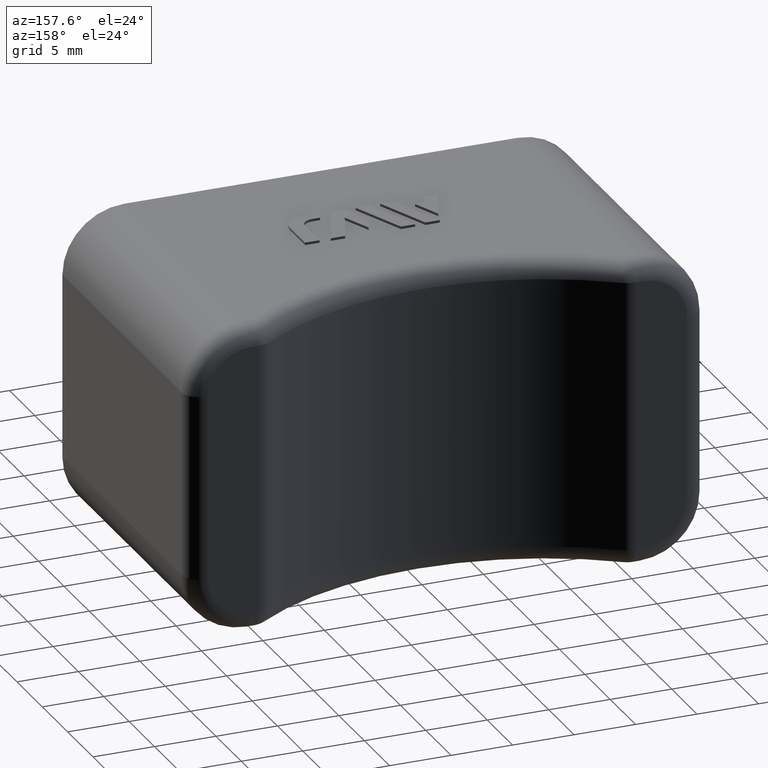
[diagram: clean part render]
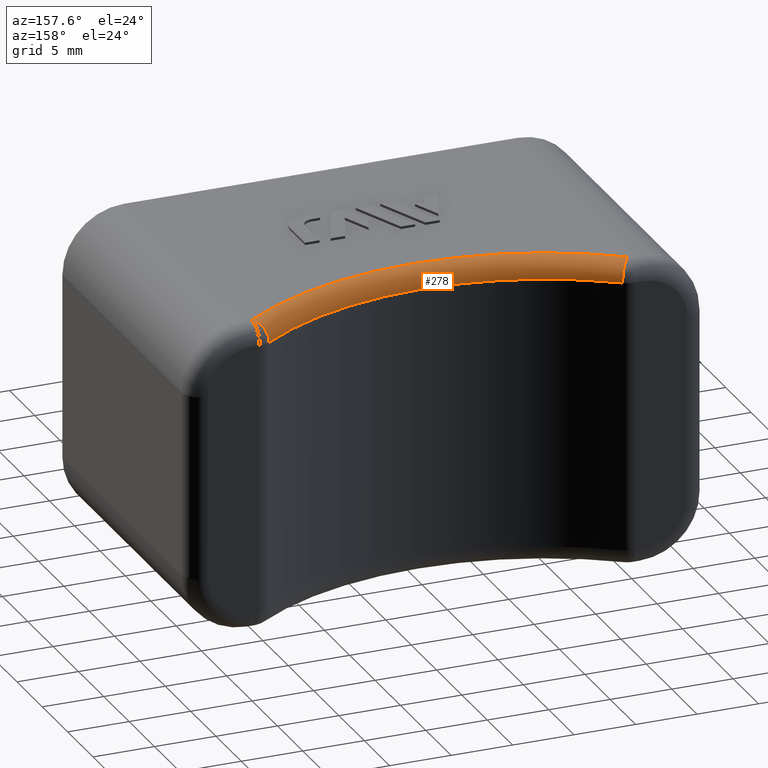
[diagram: same view with one face highlighted and labeled with its STEP entity id]
A machine part, auxiliary view. The second image highlights one B-rep face of the part: STEP entity #278.
In plain terms, the highlighted toroidal blend (fillet) surface has major radius 25.8 mm and minor (blend) radius 1.5 mm.
Its self-contained STEP definition (entity closure, byte-faithful):
#278 = ADVANCED_FACE( '', ( #772 ), #773, .T. );
#772 = FACE_OUTER_BOUND( '', #1318, .T. );
#773 = TOROIDAL_SURFACE( '', #1319, 25.8000000000000, 1.50000000000000 );
#1318 = EDGE_LOOP( '', ( #3068, #3069, #3070, #3071 ) );
#1319 = AXIS2_PLACEMENT_3D( '', #3072, #3073, #3074 );
#3068 = ORIENTED_EDGE( '', *, *, #4065, .T. );
#3069 = ORIENTED_EDGE( '', *, *, #4049, .F. );
#3070 = ORIENTED_EDGE( '', *, *, #4067, .F. );
#3071 = ORIENTED_EDGE( '', *, *, #3668, .F. );
#3072 = CARTESIAN_POINT( '', ( 0.000000000000000, 44.3000000000000, 11.0000000000000 ) );
#3073 = DIRECTION( '', ( 0.000000000000000, 0.000000000000000, -1.00000000000000 ) );
#3074 = DIRECTION( '', ( -1.00000000000000, 0.000000000000000, 0.000000000000000 ) );
#3668 = EDGE_CURVE( '', #4504, #4505, #4506, .T. );
#4049 = EDGE_CURVE( '', #4574, #5082, #5083, .F. );
#4065 = EDGE_CURVE( '', #4504, #5082, #5105, .F. );
#4067 = EDGE_CURVE( '', #4505, #4574, #5107, .T. );
#4504 = VERTEX_POINT( '', #5754 );
#4505 = VERTEX_POINT( '', #5755 );
#4506 = CIRCLE( '', #5756, 25.8000000000000 );
#4574 = VERTEX_POINT( '', #5850 );
#5082 = VERTEX_POINT( '', #6606 );
#5083 = CIRCLE( '', #6607, 24.3000000000000 );
#5105 = CIRCLE( '', #6635, 1.50000000000000 );
#5107 = CIRCLE( '', #6637, 1.50000000000000 );
#5754 = CARTESIAN_POINT( '', ( 15.2643375224738, 23.5000000000000, 12.5000000000000 ) );
#5755 = CARTESIAN_POINT( '', ( -15.2643375224738, 23.5000000000000, 12.5000000000000 ) );
#5756 = AXIS2_PLACEMENT_3D( '', #6950, #6951, #6952 );
#5850 = CARTESIAN_POINT( '', ( -14.3768760386090, 24.7093023255814, 11.0000000000000 ) );
#6606 = CARTESIAN_POINT( '', ( 14.3768760386090, 24.7093023255814, 11.0000000000000 ) );
#6607 = AXIS2_PLACEMENT_3D( '', #7545, #7546, #7547 );
#6635 = AXIS2_PLACEMENT_3D( '', #7581, #7582, #7583 );
#6637 = AXIS2_PLACEMENT_3D( '', #7587, #7588, #7589 );
#6950 = CARTESIAN_POINT( '', ( 0.000000000000000, 44.3000000000000, 12.5000000000000 ) );
#6951 = DIRECTION( '', ( 0.000000000000000, 0.000000000000000, -1.00000000000000 ) );
#6952 = DIRECTION( '', ( -1.00000000000000, 0.000000000000000, 0.000000000000000 ) );
#7545 = CARTESIAN_POINT( '', ( 0.000000000000000, 44.3000000000000, 11.0000000000000 ) );
#7546 = DIRECTION( '', ( 0.000000000000000, 0.000000000000000, -1.00000000000000 ) );
#7547 = DIRECTION( '', ( -1.00000000000000, 0.000000000000000, 0.000000000000000 ) );
#7581 = CARTESIAN_POINT( '', ( 15.2643375224737, 23.5000000000000, 11.0000000000000 ) );
#7582 = DIRECTION( '', ( 0.806201550387597, 0.591640989243169, -2.59254670142548E-014 ) );
#7583 = DIRECTION( '', ( -0.591640989243169, 0.806201550387597, 0.000000000000000 ) );
#7587 = CARTESIAN_POINT( '', ( -15.2643375224738, 23.5000000000000, 11.0000000000000 ) );
#7588 = DIRECTION( '', ( -0.806201550387582, 0.591640989243189, 0.000000000000000 ) );
#7589 = DIRECTION( '', ( -0.591640989243189, -0.806201550387582, 0.000000000000000 ) );